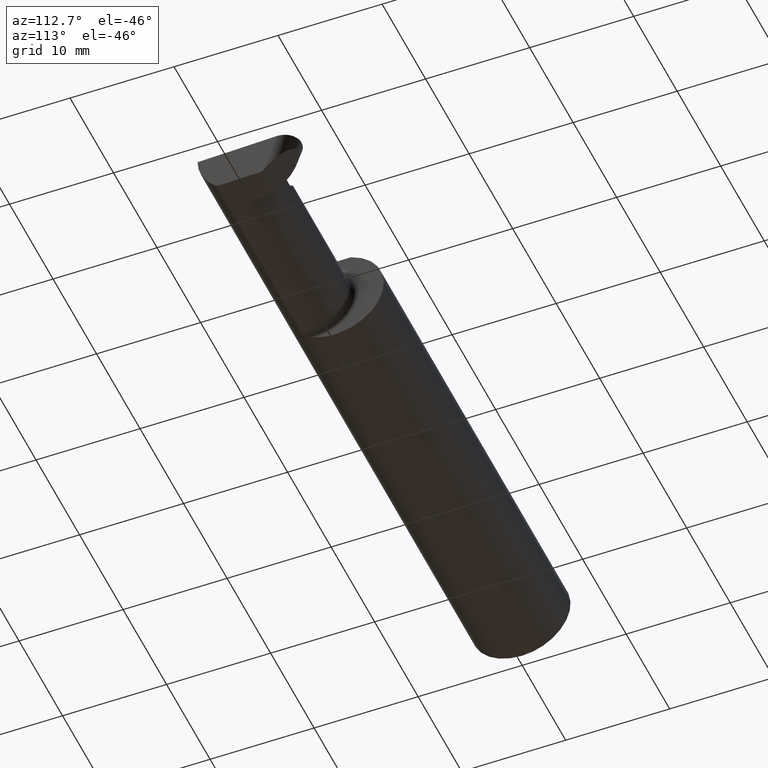
[diagram: clean part render]
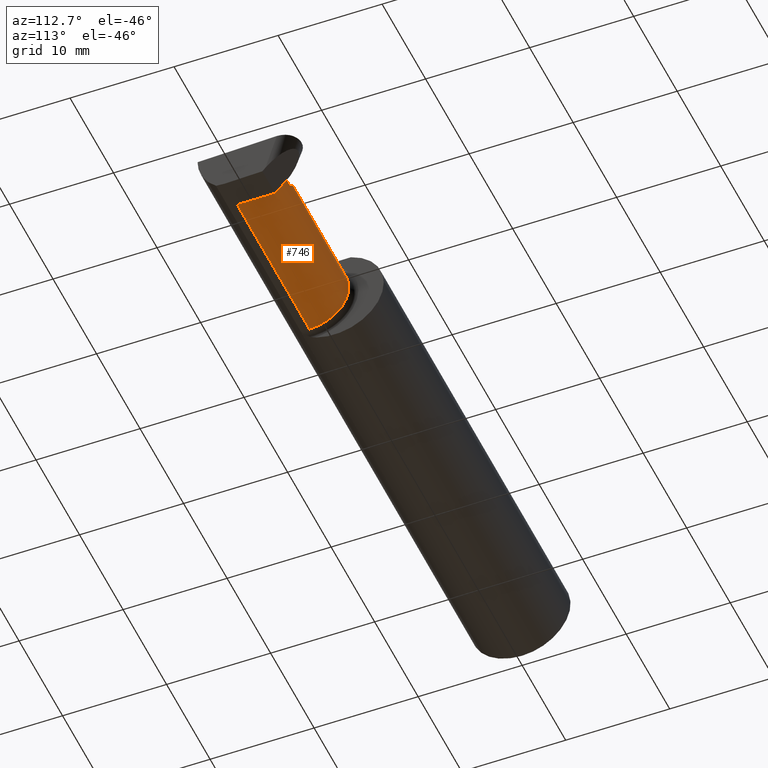
[diagram: same view with one face highlighted and labeled with its STEP entity id]
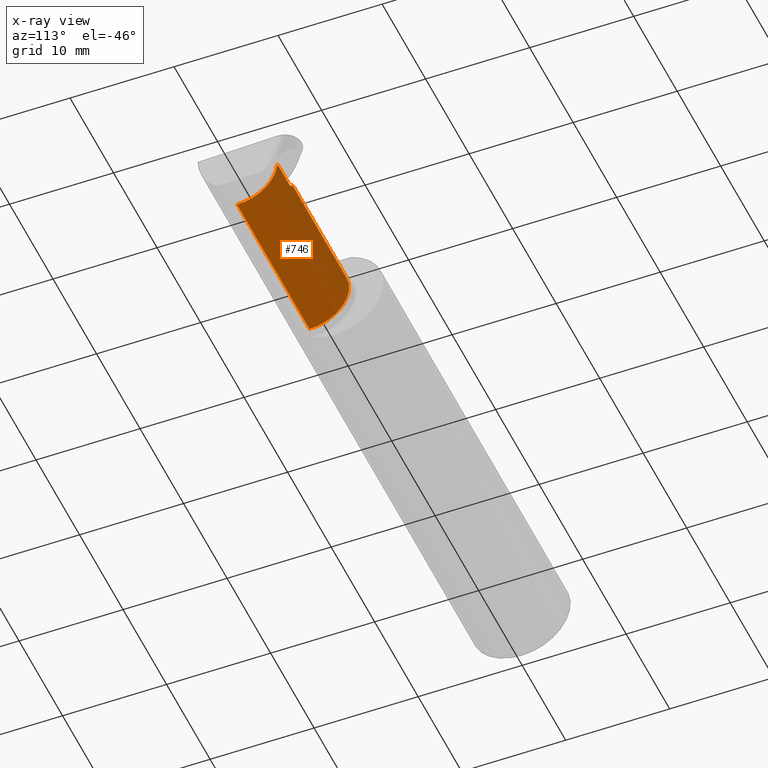
[diagram: x-ray of the same camera — body ghosted, the highlighted face saturated]
A machine part, auxiliary view. The second image highlights one B-rep face of the part: STEP entity #746.
The next image is the same camera in x-ray: the body ghosted, the highlighted face saturated — about 0% of this face is hidden behind the body in this view.
In plain terms, the highlighted cylindrical surface (partial cylindrical patch) has radius 3.81 mm, axis along (-1, -0, -0).
Its self-contained STEP definition (entity closure, byte-faithful):
#2 = CARTESIAN_POINT ( 'NONE',  ( 2.367498442027135663, 0.06665000000000002867, 0.000000000000000000 ) ) ;
#3 = ORIENTED_EDGE ( 'NONE', *, *, #192, .T. ) ;
#19 = VERTEX_POINT ( 'NONE', #797 ) ;
#24 = EDGE_CURVE ( 'NONE', #203, #169, #671, .T. ) ;
#28 = LINE ( 'NONE', #784, #260 ) ;
#50 =( BOUNDED_CURVE ( )  B_SPLINE_CURVE ( 3, ( #500, #363, #804, #241 ),
 .UNSPECIFIED., .F., .T. ) 
 B_SPLINE_CURVE_WITH_KNOTS ( ( 4, 4 ),
 ( 0.000000000000000000, 1.570796326794896336 ),
 .UNSPECIFIED. ) 
 CURVE ( )  GEOMETRIC_REPRESENTATION_ITEM ( )  RATIONAL_B_SPLINE_CURVE ( ( 1.000000000000000000, 0.8047378541243650485, 0.8047378541243650485, 1.000000000000000000 ) ) 
 REPRESENTATION_ITEM ( '' )  );
#69 = CARTESIAN_POINT ( 'NONE',  ( 2.376713715390371462, 0.06655862405287324424, -0.005234924505376470014 ) ) ;
#74 = CARTESIAN_POINT ( 'NONE',  ( 1.724999999999999867, -0.08334999999999997966, -0.1499999999999999944 ) ) ;
#80 = FACE_OUTER_BOUND ( 'NONE', #327, .T. ) ;
#88 = CARTESIAN_POINT ( 'NONE',  ( 2.109999999999998987, -0.08334999999999999354, 0.1499999999999999944 ) ) ;
#103 = CARTESIAN_POINT ( 'NONE',  ( 1.699999999999999956, -0.08334999999999997966, -0.1499999999999999944 ) ) ;
#107 = DIRECTION ( 'NONE',  ( 1.000000000000000000, 0.000000000000000000, 0.000000000000000000 ) ) ;
#132 = CARTESIAN_POINT ( 'NONE',  ( 2.376713715390371462, 0.06655862405287324424, -0.005234924505376470014 ) ) ;
#142 = AXIS2_PLACEMENT_3D ( 'NONE', #293, #535, #656 ) ;
#158 = ORIENTED_EDGE ( 'NONE', *, *, #756, .F. ) ;
#169 = VERTEX_POINT ( 'NONE', #2 ) ;
#172 = CARTESIAN_POINT ( 'NONE',  ( 1.700000000000000400, 0.06655862405286942785, -0.005234924505230438389 ) ) ;
#173 = CARTESIAN_POINT ( 'NONE',  ( 1.699999999999999956, 0.06664999999999998703, 9.797174393178831081E-17 ) ) ;
#192 = EDGE_CURVE ( 'NONE', #717, #203, #50, .T. ) ;
#203 = VERTEX_POINT ( 'NONE', #809 ) ;
#205 = CARTESIAN_POINT ( 'NONE',  ( 2.367407066079999733, 0.06655862405286441796, -0.005234924505373435982 ) ) ;
#210 = DIRECTION ( 'NONE',  ( 0.000000000000000000, 0.000000000000000000, 1.000000000000000000 ) ) ;
#241 = CARTESIAN_POINT ( 'NONE',  ( 2.260000000000000231, 0.06664999999999998703, 9.797174393178831081E-17 ) ) ;
#243 = ORIENTED_EDGE ( 'NONE', *, *, #669, .F. ) ;
#255 = VECTOR ( 'NONE', #107, 39.37007874015748143 ) ;
#260 = VECTOR ( 'NONE', #589, 39.37007874015748143 ) ;
#293 = CARTESIAN_POINT ( 'NONE',  ( 1.724999999999999867, -0.08334999999999999354, 0.000000000000000000 ) ) ;
#325 = CARTESIAN_POINT ( 'NONE',  ( 1.724999999999999867, -0.08334999999999999354, 0.1499999999999999944 ) ) ;
#327 = EDGE_LOOP ( 'NONE', ( #158, #485, #477, #729, #3, #722, #243, #514 ) ) ;
#336 = CARTESIAN_POINT ( 'NONE',  ( 2.379376865616626535, -0.08334999999999999354, -0.1500000000000000222 ) ) ;
#363 = CARTESIAN_POINT ( 'NONE',  ( 2.109999999999998543, 0.004517965644035734120, 0.1499999999999999667 ) ) ;
#379 = EDGE_CURVE ( 'NONE', #717, #699, #28, .T. ) ;
#382 =( BOUNDED_CURVE ( )  B_SPLINE_CURVE ( 3, ( #336, #761, #708, #69 ),
 .UNSPECIFIED., .F., .T. ) 
 B_SPLINE_CURVE_WITH_KNOTS ( ( 4, 4 ),
 ( 3.159045946109736214, 4.694935687864739471 ),
 .UNSPECIFIED. ) 
 CURVE ( )  GEOMETRIC_REPRESENTATION_ITEM ( )  RATIONAL_B_SPLINE_CURVE ( ( 1.000000000000000000, 0.8128932002257688305, 0.8128932002257688305, 1.000000000000000000 ) ) 
 REPRESENTATION_ITEM ( '' )  );
#399 = EDGE_CURVE ( 'NONE', #699, #676, #683, .T. ) ;
#413 = LINE ( 'NONE', #103, #749 ) ;
#444 = CYLINDRICAL_SURFACE ( 'NONE', #713, 0.1499999999999999944 ) ;
#454 = VECTOR ( 'NONE', #549, 39.37007874015748143 ) ;
#463 = VERTEX_POINT ( 'NONE', #603 ) ;
#477 = ORIENTED_EDGE ( 'NONE', *, *, #399, .F. ) ;
#483 = EDGE_CURVE ( 'NONE', #19, #676, #413, .T. ) ;
#485 = ORIENTED_EDGE ( 'NONE', *, *, #483, .T. ) ;
#500 = CARTESIAN_POINT ( 'NONE',  ( 2.109999999999998987, -0.08334999999999999354, 0.1499999999999999944 ) ) ;
#509 = DIRECTION ( 'NONE',  ( -1.000000000000000000, -0.000000000000000000, -0.000000000000000000 ) ) ;
#514 = ORIENTED_EDGE ( 'NONE', *, *, #648, .F. ) ;
#516 = CARTESIAN_POINT ( 'NONE',  ( 2.367467983378090501, 0.06661954135095482510, -0.001744974835124478083 ) ) ;
#531 = DIRECTION ( 'NONE',  ( -1.000000000000000000, -0.000000000000000000, -0.000000000000000000 ) ) ;
#535 = DIRECTION ( 'NONE',  ( -1.000000000000000000, -0.000000000000000000, -0.000000000000000000 ) ) ;
#549 = DIRECTION ( 'NONE',  ( -1.000000000000000000, -0.000000000000000000, -0.000000000000000000 ) ) ;
#562 = LINE ( 'NONE', #172, #454 ) ;
#573 = CARTESIAN_POINT ( 'NONE',  ( 2.367437524729044895, 0.06658908270190962153, -0.003489949670248957032 ) ) ;
#589 = DIRECTION ( 'NONE',  ( -1.000000000000000000, -0.000000000000000000, -0.000000000000000000 ) ) ;
#603 = CARTESIAN_POINT ( 'NONE',  ( 2.367407066079999733, 0.06655862405286441796, -0.005234924505373435982 ) ) ;
#647 = CARTESIAN_POINT ( 'NONE',  ( 2.367498442027135663, 0.06665000000000002867, 0.000000000000000000 ) ) ;
#648 = EDGE_CURVE ( 'NONE', #748, #463, #562, .T. ) ;
#656 = DIRECTION ( 'NONE',  ( 0.000000000000000000, 0.000000000000000000, 1.000000000000000000 ) ) ;
#669 = EDGE_CURVE ( 'NONE', #463, #169, #702, .T. ) ;
#671 = LINE ( 'NONE', #173, #255 ) ;
#676 = VERTEX_POINT ( 'NONE', #74 ) ;
#683 = CIRCLE ( 'NONE', #142, 0.1499999999999999944 ) ;
#699 = VERTEX_POINT ( 'NONE', #325 ) ;
#702 = B_SPLINE_CURVE_WITH_KNOTS ( 'NONE', 3,
 ( #205, #573, #516, #647 ),
 .UNSPECIFIED., .F., .F.,
 ( 4, 4 ),
 ( 0.000000000000000000, 1.000000000000000000 ),
 .UNSPECIFIED. ) ;
#708 = CARTESIAN_POINT ( 'NONE',  ( 2.378257866392183395, 0.06357628547474977743, -0.09063792740365840539 ) ) ;
#713 = AXIS2_PLACEMENT_3D ( 'NONE', #715, #509, #210 ) ;
#715 = CARTESIAN_POINT ( 'NONE',  ( 1.699999999999999956, -0.08334999999999999354, 0.000000000000000000 ) ) ;
#717 = VERTEX_POINT ( 'NONE', #88 ) ;
#722 = ORIENTED_EDGE ( 'NONE', *, *, #24, .T. ) ;
#729 = ORIENTED_EDGE ( 'NONE', *, *, #379, .F. ) ;
#746 = ADVANCED_FACE ( 'NONE', ( #80 ), #444, .T. ) ;
#748 = VERTEX_POINT ( 'NONE', #132 ) ;
#749 = VECTOR ( 'NONE', #531, 39.37007874015748143 ) ;
#756 = EDGE_CURVE ( 'NONE', #19, #748, #382, .T. ) ;
#761 = CARTESIAN_POINT ( 'NONE',  ( 2.379349912360630981, 0.002105059811801068478, -0.1499999999999999944 ) ) ;
#784 = CARTESIAN_POINT ( 'NONE',  ( 1.699999999999999956, -0.08334999999999999354, 0.1499999999999999944 ) ) ;
#797 = CARTESIAN_POINT ( 'NONE',  ( 2.379376865616626535, -0.08334999999999999354, -0.1500000000000000222 ) ) ;
#804 = CARTESIAN_POINT ( 'NONE',  ( 2.172132034355963359, 0.06664999999999998703, 0.08786796564403573373 ) ) ;
#809 = CARTESIAN_POINT ( 'NONE',  ( 2.260000000000000231, 0.06664999999999998703, 9.797174393178831081E-17 ) ) ;